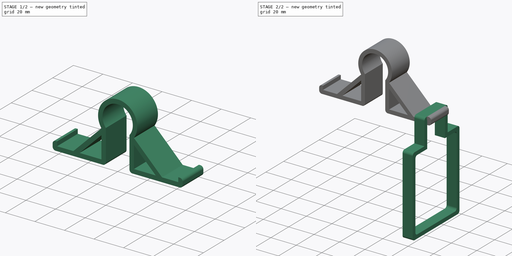
[diagram: build sequence overview — one tinted view per stage of 2, left to right]
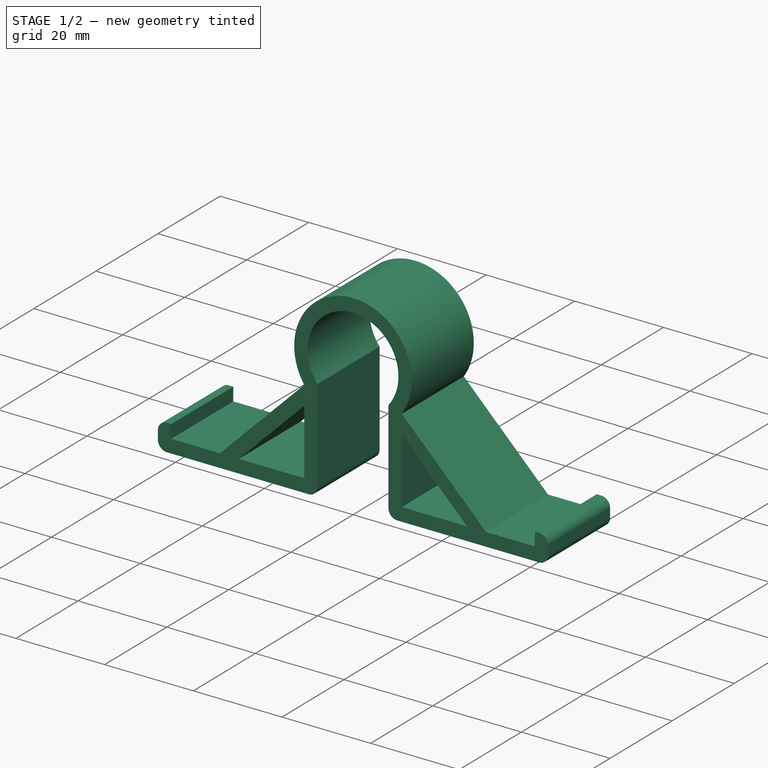
[diagram: stage 1 of 2 — iso view after this stage's code; geometry added in this stage tinted green]
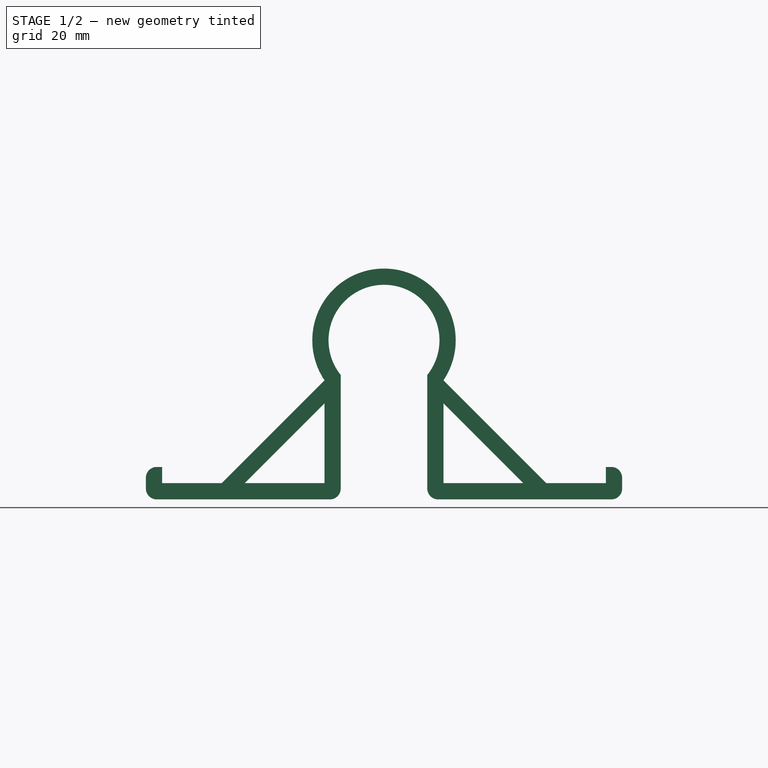
[diagram: stage 1 of 2 — front view after this stage's code; geometry added in this stage tinted green]
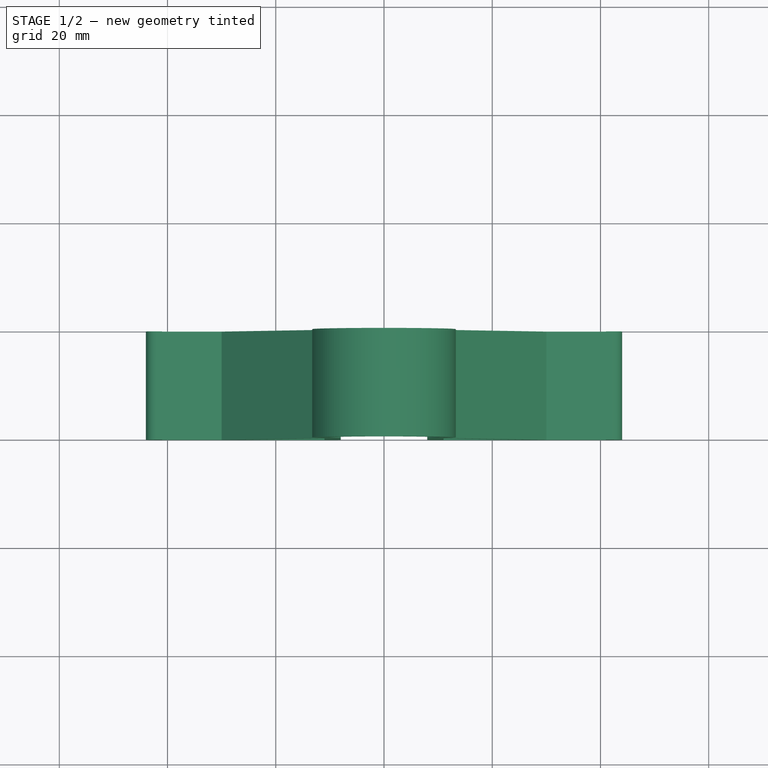
[diagram: stage 1 of 2 — top view after this stage's code; geometry added in this stage tinted green]
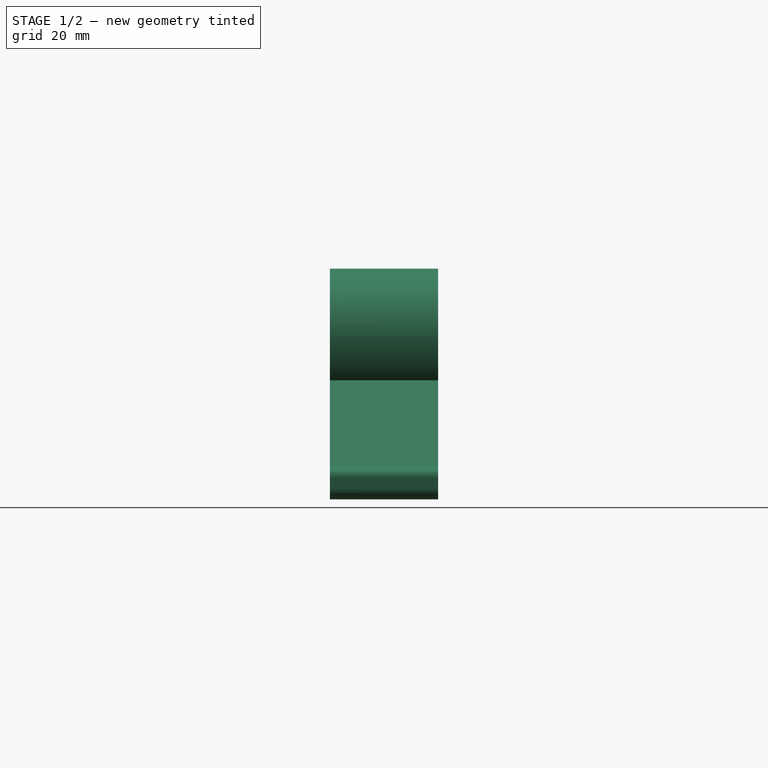
[diagram: stage 1 of 2 — right view after this stage's code; geometry added in this stage tinted green]
FCSTD DOCUMENT  (FreeCAD 0.20R29177 (Git))
Label: anker_soundcore2_showermount
License: All rights reserved
LicenseURL: http://en.wikipedia.org/wiki/All_rights_reserved
objects: Sketcher::SketchObject×2, PartDesign::Pad×2, PartDesign::Fillet×2, PartDesign::Body×2, Spreadsheet::Sheet×1
note: 12 computed .brp shape members not serialized (recipe doc carries the construction recipe); baked Part::Feature solids carry a one-line shape summary decoded from their .brp

FEATURE [Spreadsheet::Sheet] Spreadsheet  label="$params"
  cells = A1=name; B1=value; D1=name; E1=value; A2=shower_diam; B2(shower_diam)=20.5; D2=speaker_cover_distance; E2(speaker_cover_distance)=82; A3=shower_hook_slot_dist; B3(shower_hook_slot_dist)=16; D3=speaker_height; E3(speaker_height)=56.5; A4=speaker_top_dist; B4(speaker_top_dist)=20; D4=speaker_depth; E4(speaker_depth)=46.5; A5=speaker_mount_dist; B5(speaker_mount_dist)=20; D5=wall_thickness; E5(wall_thickness)=3; D6=wall_depth; E6(wall_depth)=20; D7=speaker_wall_depth; E7(speaker_wall_depth)=8
FEATURE [Sketcher::SketchObject] Sketch  label="Shower Mount Body Sketch"
  FullyConstrained = true
  MapMode = 5
  Placement = pos=(0,0,0) rot=(1,0,0;1.5708rad)
  Support = -> [XZ_Plane]
  expr: Constraints[120] = <<$params>>.wall_thickness
  expr: Constraints[1] = <<$params>>.shower_diam
  expr: Constraints[30] = <<$params>>.speaker_cover_distance
  expr: Constraints[31] = <<$params>>.wall_thickness
  expr: Constraints[40] = <<$params>>.wall_thickness
  expr: Constraints[70] = <<$params>>.shower_hook_slot_dist
  expr: Constraints[80] = <<$params>>.speaker_top_dist
  expr: Constraints[8] = <<$params>>.wall_thickness
  sketch-geometry (45):
    g0: ArcOfCircle CenterX=0 CenterY=29.408 CenterZ=0 NormalX=0 NormalY=0 NormalZ=1 AngleXU=0 Radius=10.25 StartAngle=5.60783 EndAngle=10.1001
    g1: LineSegment StartX=0 StartY=29.408 StartZ=0 EndX=-10.25 EndY=29.408 EndZ=0
    g2: LineSegment StartX=0 StartY=29.408 StartZ=0 EndX=10.25 EndY=29.408 EndZ=0
    g3: LineSegment StartX=-10.25 StartY=29.408 StartZ=0 EndX=-13.25 EndY=29.408 EndZ=0
    g4: LineSegment StartX=-11 StartY=22.0214 StartZ=0 EndX=-11 EndY=22 EndZ=0
    g5: LineSegment StartX=11 StartY=22.0214 StartZ=0 EndX=11 EndY=22 EndZ=0
    g6: LineSegment StartX=-11 StartY=3 StartZ=0 EndX=-25.7574 EndY=3 EndZ=0
    g7: LineSegment StartX=-41 StartY=3 StartZ=0 EndX=-41 EndY=6 EndZ=0
    g8: LineSegment StartX=-8 StartY=0 StartZ=0 EndX=-44 EndY=0 EndZ=0
    g9: LineSegment StartX=-44 StartY=0 StartZ=0 EndX=-44 EndY=6 EndZ=0
    g10: LineSegment StartX=-44 StartY=6 StartZ=0 EndX=-41 EndY=6 EndZ=0
    g11: LineSegment StartX=11 StartY=3 StartZ=0 EndX=25.7574 EndY=3 EndZ=0
    g12: LineSegment StartX=41 StartY=3 StartZ=0 EndX=41 EndY=6 EndZ=0
    g13: LineSegment StartX=41 StartY=6 StartZ=0 EndX=44 EndY=6 EndZ=0
    g14: LineSegment StartX=44 StartY=6 StartZ=0 EndX=44 EndY=0 EndZ=0
    g15: LineSegment StartX=44 StartY=0 StartZ=0 EndX=8 EndY=0 EndZ=0
    g16: LineSegment StartX=-11 StartY=3 StartZ=0 EndX=-8 EndY=3 EndZ=0
    g17: LineSegment StartX=11 StartY=3 StartZ=0 EndX=8 EndY=3 EndZ=0
    g18: LineSegment StartX=8 StartY=3 StartZ=0 EndX=-8 EndY=3 EndZ=0
    g19: LineSegment StartX=41 StartY=6 StartZ=0 EndX=-41 EndY=6 EndZ=0
    g20: ArcOfCircle CenterX=0 CenterY=29.408 CenterZ=0 NormalX=0 NormalY=0 NormalZ=1 AngleXU=0 Radius=13.25 StartAngle=5.69184 EndAngle=10.0161
    g21: LineSegment StartX=-8 StartY=23 StartZ=0 EndX=-8 EndY=3 EndZ=0
    g22: LineSegment StartX=8 StartY=23 StartZ=0 EndX=8 EndY=3 EndZ=0
    g23: LineSegment StartX=-8 StartY=23 StartZ=0 EndX=-8 EndY=22.0214 EndZ=0
    g24: LineSegment StartX=-8 StartY=22.0214 StartZ=0 EndX=8 EndY=22.0214 EndZ=0
    g25: LineSegment StartX=-11 StartY=22.0214 StartZ=0 EndX=-8 EndY=22.0214 EndZ=0
    g26: LineSegment StartX=8 StartY=22.0214 StartZ=0 EndX=11 EndY=22.0214 EndZ=0
    g27: LineSegment StartX=-8 StartY=3 StartZ=0 EndX=-8 EndY=0 EndZ=0
    g28: LineSegment StartX=8 StartY=3 StartZ=0 EndX=8 EndY=0 EndZ=0
    g29: LineSegment StartX=-8 StartY=0 StartZ=0 EndX=8 EndY=0 EndZ=0
    g30: LineSegment StartX=-11 StartY=22 StartZ=0 EndX=-30 EndY=3 EndZ=0
    g31: LineSegment StartX=-11 StartY=17.7574 StartZ=0 EndX=-25.7574 EndY=3 EndZ=0
    g32: LineSegment StartX=11 StartY=22 StartZ=0 EndX=30 EndY=3 EndZ=0
    g33: LineSegment StartX=11 StartY=17.7574 StartZ=0 EndX=25.7574 EndY=3 EndZ=0
    g34: LineSegment StartX=-11 StartY=17.7574 StartZ=0 EndX=-11 EndY=3 EndZ=0
    g35: LineSegment StartX=11 StartY=17.7574 StartZ=0 EndX=11 EndY=3 EndZ=0
    g36: LineSegment StartX=30 StartY=3 StartZ=0 EndX=41 EndY=3 EndZ=0
    g37: LineSegment StartX=-11 StartY=17.7574 StartZ=0 EndX=11 EndY=17.7574 EndZ=0
    g38: LineSegment StartX=-11 StartY=22 StartZ=0 EndX=11 EndY=22 EndZ=0
    g39: LineSegment StartX=-30 StartY=3 StartZ=0 EndX=-25.7574 EndY=3 EndZ=0
    g40: LineSegment StartX=25.7574 StartY=3 StartZ=0 EndX=30 EndY=3 EndZ=0
    g41: LineSegment StartX=-11 StartY=22 StartZ=0 EndX=-11 EndY=17.7574 EndZ=0
    g42: LineSegment StartX=11 StartY=22 StartZ=0 EndX=11 EndY=17.7574 EndZ=0
    g43: LineSegment StartX=-41 StartY=3 StartZ=0 EndX=-30 EndY=3 EndZ=0
    g44: LineSegment StartX=-18.3787 StartY=10.3787 StartZ=0 EndX=-20.5 EndY=12.5 EndZ=0
  constraints (123):
    c: PointOnObject(g0,g-2)
    c: Diameter(g0) = 20.5
    c: PointOnObject(g1,g0)
    c: Horizontal(g1)
    c: PointOnObject(g2,g0)
    c: Horizontal(g2)
    c: Coincident(g3,g1)
    c: Horizontal(g3)
    c: DistanceX(g3,g3) = 3
    c: Vertical(g4)
    c: Vertical(g5)
    c: Coincident(g6,g34)
    c: Horizontal(g6)
    c: Vertical(g7)
    c: Horizontal(g8)
    c: Coincident(g9,g8)
    c: Vertical(g9)
    c: Coincident(g10,g9)
    c: Coincident(g10,g7)
    c: Horizontal(g10)
    c: Coincident(g11,g35)
    c: Horizontal(g11)
    c: Coincident(g12,g36)
    c: Coincident(g13,g12)
    c: Coincident(g14,g13)
    c: Vertical(g14)
    c: Coincident(g15,g14)
    c: Horizontal(g15)
    c: Vertical(g12)
    c: Horizontal(g13)
    c: DistanceX(g7,g36) = 82
    c: DistanceX(g10,g10) = 3
    c: Equal(g10,g13)
    c: Coincident(g16,g34)
    c: Horizontal(g16)
    c: Coincident(g17,g35)
    c: Horizontal(g17)
    c: Coincident(g18,g17)
    c: Horizontal(g18)
    c: Coincident(g16,g18)
    c: DistanceY(g8,g16) = 3
    c: Equal(g16,g17)
    c: Equal(g16,g10)
    c: Coincident(g19,g12)
    c: Coincident(g19,g7)
    c: Horizontal(g19)
    c: Equal(g10,g7)
    c: Coincident(g20,g4)
    c: Coincident(g20,g5)
    c: Coincident(g0,g1)
    c: Coincident(g0,g2)
    c: Coincident(g0,g20)
    c: PointOnObject(g3,g20)
    c: Coincident(g21,g0)
    c: Coincident(g21,g16)
    c: Vertical(g21)
    c: Coincident(g22,g0)
    c: Coincident(g22,g17)
    c: Vertical(g22)
    c: Coincident(g23,g0)
    c: Vertical(g23)
    c: Coincident(g24,g23)
    c: PointOnObject(g24,g22)
    c: Horizontal(g24)
    c: Coincident(g25,g4)
    c: Coincident(g25,g23)
    c: Horizontal(g25)
    c: Coincident(g26,g24)
    c: Coincident(g26,g5)
    c: Horizontal(g26)
    c: DistanceX(g24,g24) = 16
    c: Coincident(g27,g21)
    c: Coincident(g27,g8)
    c: Coincident(g28,g22)
    c: Coincident(g28,g15)
    c: Vertical(g28)
    c: Vertical(g27)
    c: Coincident(g29,g8)
    c: Coincident(g29,g15)
    c: Horizontal(g29)
    c: DistanceY(g21,g21) = 20
    c: Coincident(g4,g30)
    c: Coincident(g34,g31)
    c: Coincident(g5,g32)
    c: Coincident(g35,g33)
    c: Coincident(g6,g31)
    c: Coincident(g11,g33)
    c: Coincident(g36,g32)
    c: Equal(g35,g11)
    c: Equal(g34,g6)
    c: Coincident(g37,g31)
    c: Coincident(g37,g33)
    c: Horizontal(g37)
    c: Coincident(g38,g4)
    c: Coincident(g38,g5)
    c: Horizontal(g38)
    c: Coincident(g39,g30)
    c: Coincident(g39,g6)
    c: Coincident(g40,g11)
    c: Coincident(g40,g32)
    c: Horizontal(g40)
    c: Horizontal(g36)
    c: Horizontal(g39)
    c: Coincident(g41,g4)
    c: Coincident(g41,g31)
    c: Coincident(g42,g5)
    c: Coincident(g42,g33)
    c: Vertical(g42)
    c: Vertical(g41)
    c: Vertical(g34)
    c: Parallel(g30,g31)
    c: Parallel(g32,g33)
    c: Vertical(g35)
    c: Coincident(g43,g7)
    c: Coincident(g43,g30)
    c: Horizontal(g43)
    c: DistanceX(g43,g43) = 11
    c: Equal(g43,g36)
    c: PointOnObject(g44,g31)
    c: PointOnObject(g44,g30)
    c: Distance(g44) = 3
    c: PointOnObject(g15,g-1)
    c: Symmetric(g30,g4,g44)
FEATURE [PartDesign::Pad] Pad  label="Shower Mount Body"
  Direction = (0,-1,-2e-16)
  Length = 20
  Length2 = 10
  Placement = pos=(0,0,0) rot=(1,0,0;1.5708rad)
  Profile = -> Sketch
  ReferenceAxis = -> Sketch [N_Axis]
  Reversed = true
  Type = 0
  expr: Length = <<$params>>.wall_depth
FEATURE [PartDesign::Body] Body001  label="Speaker Mount Bracket"
  Group = -> [Sketch001,Pad001,Fillet]
  Origin = -> Origin001
  Tip = -> Fillet
FEATURE [PartDesign::Fillet] Fillet001  label="Shower Mount Fillet"
  Base = -> Pad [Edge53,Edge14,Edge11,Edge56,Edge17,Edge50]
  BaseFeature = -> Pad
  Placement = pos=(0,0,0) rot=(1,0,0;1.5708rad)
  Radius = 2
  SupportTransform = false
  UseAllEdges = false
FEATURE [PartDesign::Body] Body  label="Shower Mount"
  Group = -> [Sketch,Pad,Fillet001]
  Origin = -> Origin
  Tip = -> Fillet001
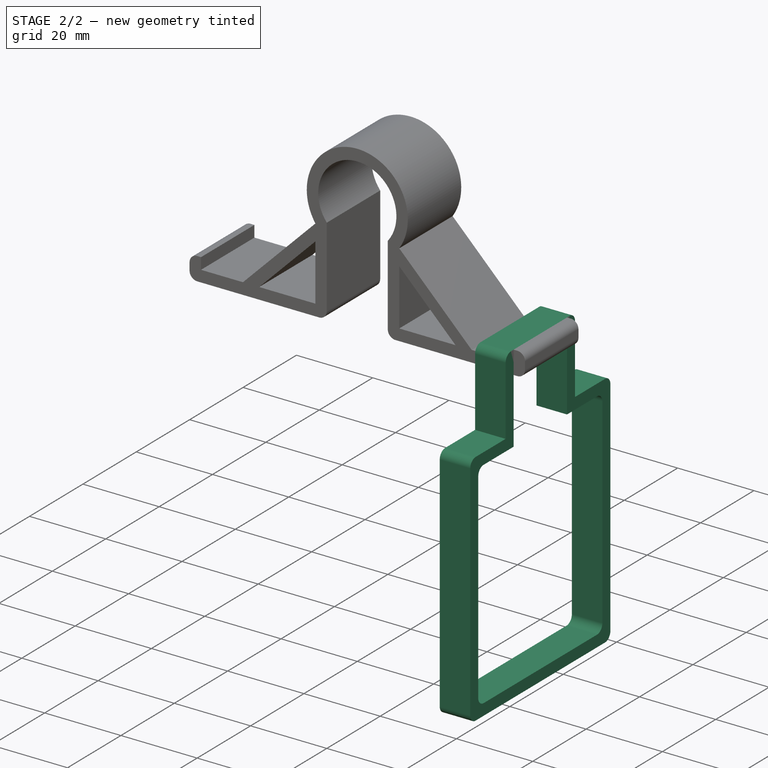
[diagram: stage 2 of 2 — iso view after this stage's code; geometry added in this stage tinted green]
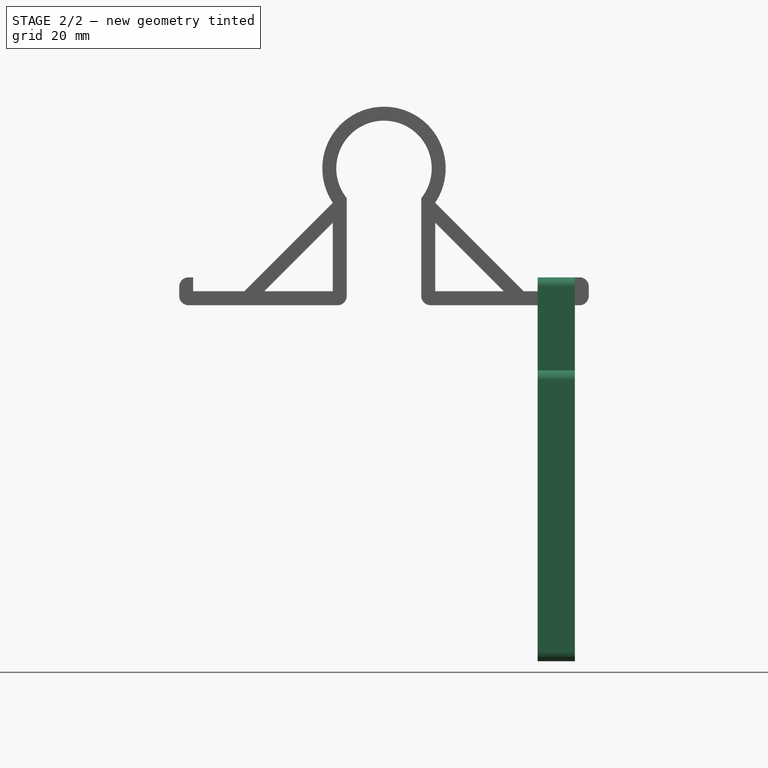
[diagram: stage 2 of 2 — front view after this stage's code; geometry added in this stage tinted green]
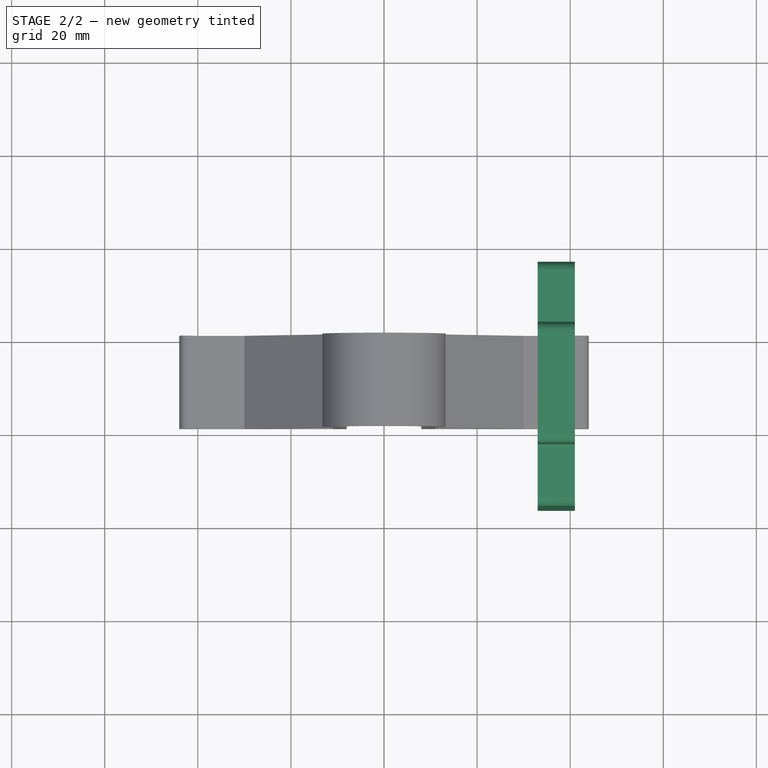
[diagram: stage 2 of 2 — top view after this stage's code; geometry added in this stage tinted green]
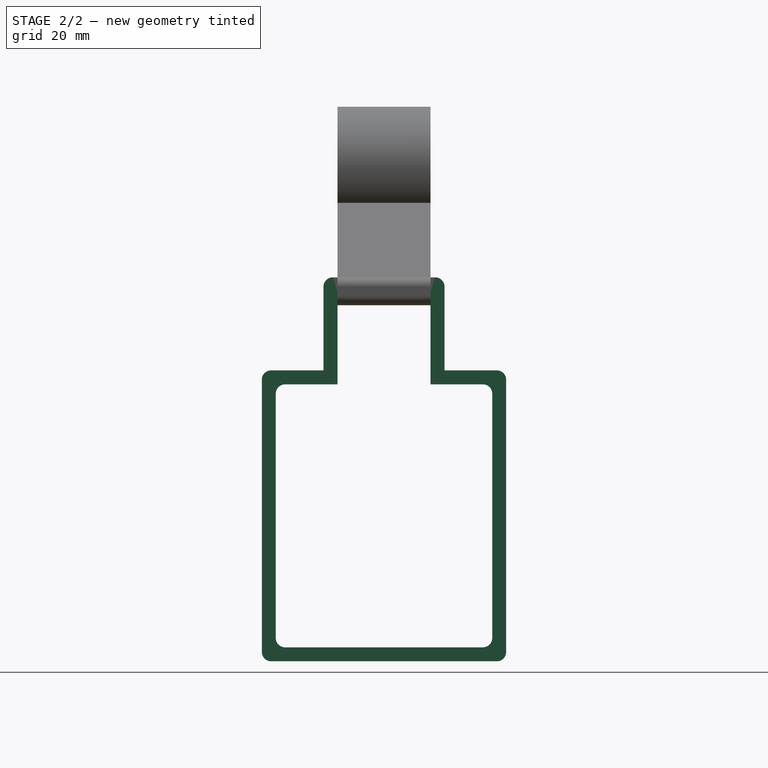
[diagram: stage 2 of 2 — right view after this stage's code; geometry added in this stage tinted green]
FEATURE [Sketcher::SketchObject] Sketch001  label="Speaker Mount Bracket Body Sketch"
  AttachmentOffset = pos=(0,0,33) rot=(0,0,1;0rad)
  FullyConstrained = true
  MapMode = 5
  Placement = pos=(33,-7.3e-15,7.3e-15) rot=(0.57735,0.57735,0.57735;2.0944rad)
  Support = -> [YZ_Plane001]
  expr: .AttachmentOffset.Base.z = <<$params>>.speaker_cover_distance / 2 - <<$params>>.speaker_wall_depth
  expr: Constraints[19] = <<$params>>.wall_thickness * 2 + <<$params>>.wall_depth
  expr: Constraints[20] = <<$params>>.wall_thickness
  expr: Constraints[21] = <<$params>>.speaker_depth + <<$params>>.wall_thickness * 2
  expr: Constraints[22] = <<$params>>.speaker_height + <<$params>>.wall_thickness * 2
  expr: Constraints[60] = <<$params>>.wall_thickness
  expr: Constraints[70] = <<$params>>.speaker_mount_dist
  expr: Constraints[72] = <<$params>>.wall_thickness
  sketch-geometry (25):
    g0: LineSegment StartX=-3 StartY=6 StartZ=0 EndX=-3 EndY=-14 EndZ=0
    g1: LineSegment StartX=-3 StartY=-14 StartZ=0 EndX=-16.25 EndY=-14 EndZ=0
    g2: LineSegment StartX=-16.25 StartY=-14 StartZ=0 EndX=-16.25 EndY=-76.5 EndZ=0
    g3: LineSegment StartX=-16.25 StartY=-76.5 StartZ=0 EndX=36.25 EndY=-76.5 EndZ=0
    g4: LineSegment StartX=36.25 StartY=-76.5 StartZ=0 EndX=36.25 EndY=-14 EndZ=0
    g5: LineSegment StartX=36.25 StartY=-14 StartZ=0 EndX=23 EndY=-14 EndZ=0
    g6: LineSegment StartX=23 StartY=-14 StartZ=0 EndX=23 EndY=6 EndZ=0
    g7: LineSegment StartX=23 StartY=6 StartZ=0 EndX=-3 EndY=6 EndZ=0
    g8: LineSegment StartX=-3 StartY=-14 StartZ=0 EndX=23 EndY=-14 EndZ=0
    g9: LineSegment StartX=-13.25 StartY=-17 StartZ=0 EndX=-13.25 EndY=-73.5 EndZ=0
    g10: LineSegment StartX=-13.25 StartY=-73.5 StartZ=0 EndX=33.25 EndY=-73.5 EndZ=0
    g11: LineSegment StartX=33.25 StartY=-73.5 StartZ=0 EndX=33.25 EndY=-17 EndZ=0
    g12: LineSegment StartX=33.25 StartY=-17 StartZ=0 EndX=20 EndY=-17 EndZ=0
    g13: LineSegment StartX=-13.25 StartY=-17 StartZ=0 EndX=0 EndY=-17 EndZ=0
    g14: LineSegment StartX=0 StartY=-17 StartZ=0 EndX=20 EndY=-17 EndZ=0
    g15: LineSegment StartX=0 StartY=-17 StartZ=0 EndX=0 EndY=3 EndZ=0
    g16: LineSegment StartX=20 StartY=-17 StartZ=0 EndX=20 EndY=3 EndZ=0
    g17: LineSegment StartX=0 StartY=3 StartZ=0 EndX=20 EndY=3 EndZ=0
    g18: LineSegment StartX=23 StartY=3 StartZ=0 EndX=20 EndY=3 EndZ=0
    g19: LineSegment StartX=20 StartY=6 StartZ=0 EndX=20 EndY=3 EndZ=0
    g20: LineSegment StartX=33.25 StartY=-17 StartZ=0 EndX=36.25 EndY=-17 EndZ=0
    g21: LineSegment StartX=33.25 StartY=-17 StartZ=0 EndX=33.25 EndY=-14 EndZ=0
    g22: LineSegment StartX=-13.25 StartY=-73.5 StartZ=0 EndX=-13.25 EndY=-76.5 EndZ=0
    g23: LineSegment StartX=-13.25 StartY=-73.5 StartZ=0 EndX=-16.25 EndY=-73.5 EndZ=0
    g24: LineSegment StartX=0 StartY=3 StartZ=0 EndX=-3 EndY=3 EndZ=0
  constraints (73):
    c: Vertical(g0)
    c: Coincident(g0,g1)
    c: Horizontal(g1)
    c: Coincident(g1,g2)
    c: Vertical(g2)
    c: Coincident(g2,g3)
    c: Horizontal(g3)
    c: Coincident(g3,g4)
    c: Vertical(g4)
    c: Coincident(g4,g5)
    c: Horizontal(g5)
    c: Coincident(g5,g6)
    c: Vertical(g6)
    c: Coincident(g6,g7)
    c: Coincident(g7,g0)
    c: Horizontal(g7)
    c: Coincident(g8,g0)
    c: Coincident(g8,g5)
    c: Horizontal(g8)
    c: DistanceX(g8,g8) = 26
    c: DistanceX(g0,g-1) = 3
    c: DistanceX(g3,g3) = 52.5
    c: DistanceY(g4,g4) = 62.5
    c: Vertical(g9)
    c: Coincident(g10,g9)
    c: Horizontal(g10)
    c: Coincident(g11,g10)
    c: Vertical(g11)
    c: Coincident(g12,g11)
    c: Coincident(g13,g9)
    c: Horizontal(g13)
    c: Horizontal(g12)
    c: Coincident(g14,g13)
    c: Coincident(g14,g12)
    c: Horizontal(g14)
    c: Coincident(g15,g13)
    c: Coincident(g16,g12)
    c: Coincident(g17,g15)
    c: Coincident(g17,g16)
    c: Horizontal(g17)
    c: Vertical(g15)
    c: Vertical(g16)
    c: PointOnObject(g18,g6)
    c: Coincident(g18,g16)
    c: Horizontal(g18)
    c: PointOnObject(g19,g7)
    c: Coincident(g19,g16)
    c: Vertical(g19)
    c: Coincident(g20,g11)
    c: PointOnObject(g20,g4)
    c: Horizontal(g20)
    c: Coincident(g21,g11)
    c: PointOnObject(g21,g5)
    c: Vertical(g21)
    c: Coincident(g22,g9)
    c: PointOnObject(g22,g3)
    c: Vertical(g22)
    c: Coincident(g23,g9)
    c: PointOnObject(g23,g2)
    c: Horizontal(g23)
    c: DistanceX(g18,g18) = 3
    c: Equal(g18,g19)
    c: Equal(g19,g20)
    c: Equal(g20,g21)
    c: Equal(g21,g23)
    c: Equal(g23,g22)
    c: Coincident(g24,g15)
    c: PointOnObject(g24,g0)
    c: Horizontal(g24)
    c: Equal(g24,g18)
    c: DistanceY(g15,g15) = 20
    c: Equal(g12,g13)
    c: DistanceY(g-1,g15) = 3
FEATURE [PartDesign::Pad] Pad001  label="Speaker Mount Bracket Body"
  Direction = (1,-2e-16,3e-16)
  Length = 8
  Length2 = 10
  Placement = pos=(0,0,0) rot=(0.57735,0.57735,0.57735;2.0944rad)
  Profile = -> Sketch001
  ReferenceAxis = -> Sketch001 [N_Axis]
  Type = 0
  expr: Length = <<$params>>.speaker_wall_depth
FEATURE [PartDesign::Fillet] Fillet  label="Speaker Mount Bracket Fillet"
  Base = -> Pad001 [Edge25,Edge5,Edge32,Edge14,Edge8,Edge26,Edge29,Edge11,Edge20,Edge1]
  BaseFeature = -> Pad001
  Placement = pos=(0,0,0) rot=(0.57735,0.57735,0.57735;2.0944rad)
  Radius = 2
  SupportTransform = false
  UseAllEdges = false
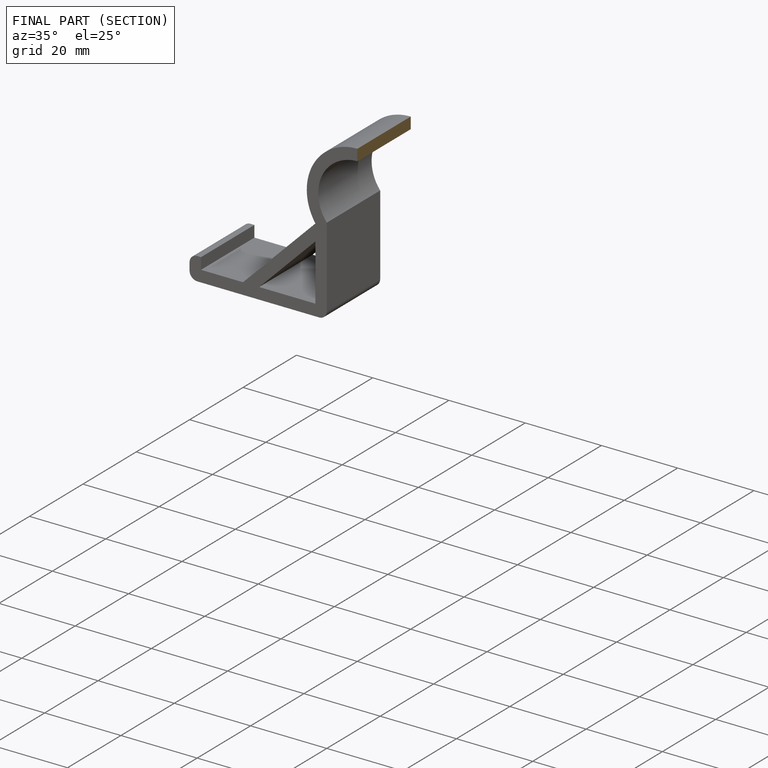
[diagram: finished part — half-section view (interior)]
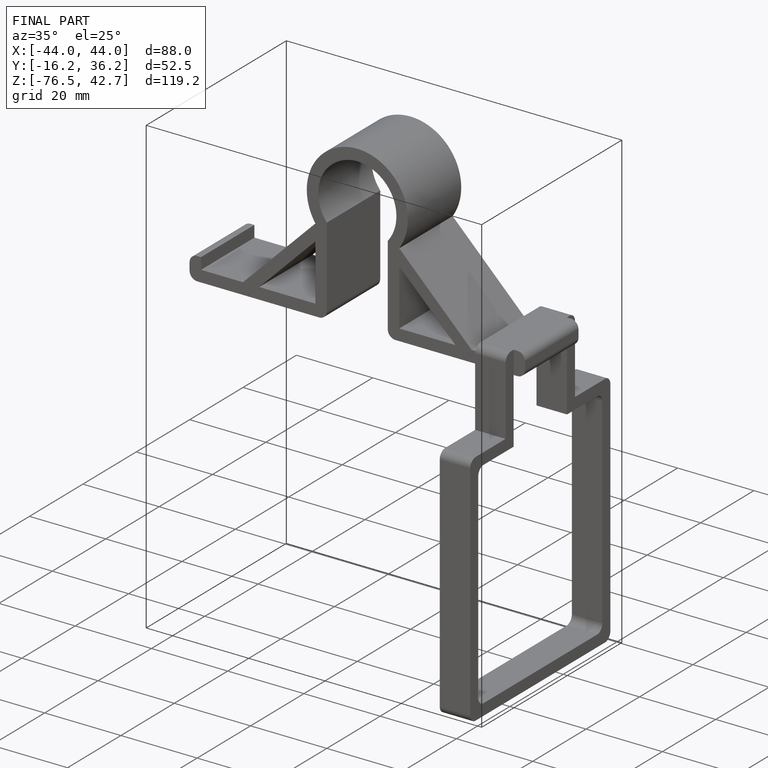
[diagram: finished part — iso view with bounding-box wireframe]
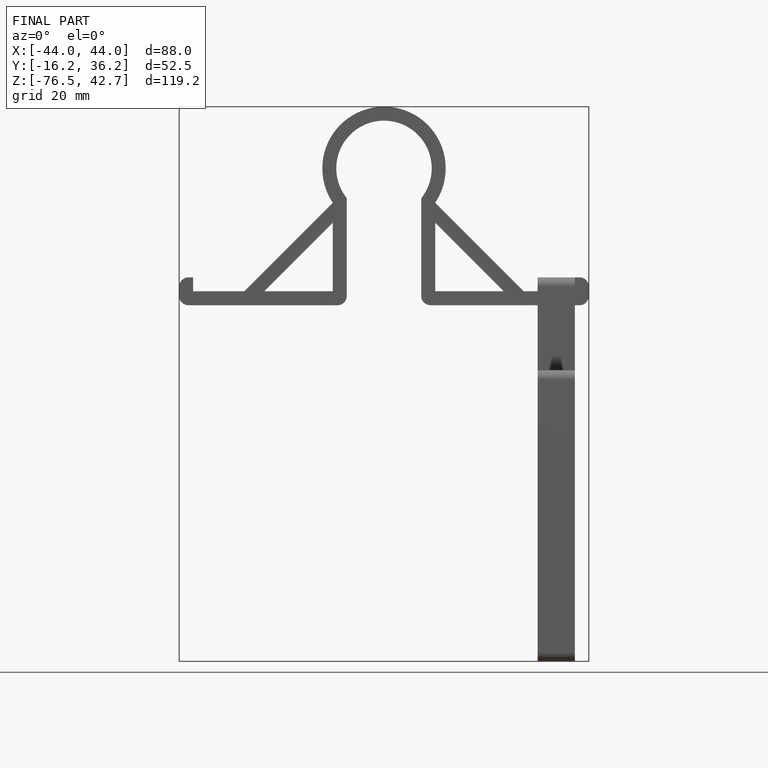
[diagram: finished part — front view with bounding-box wireframe]
